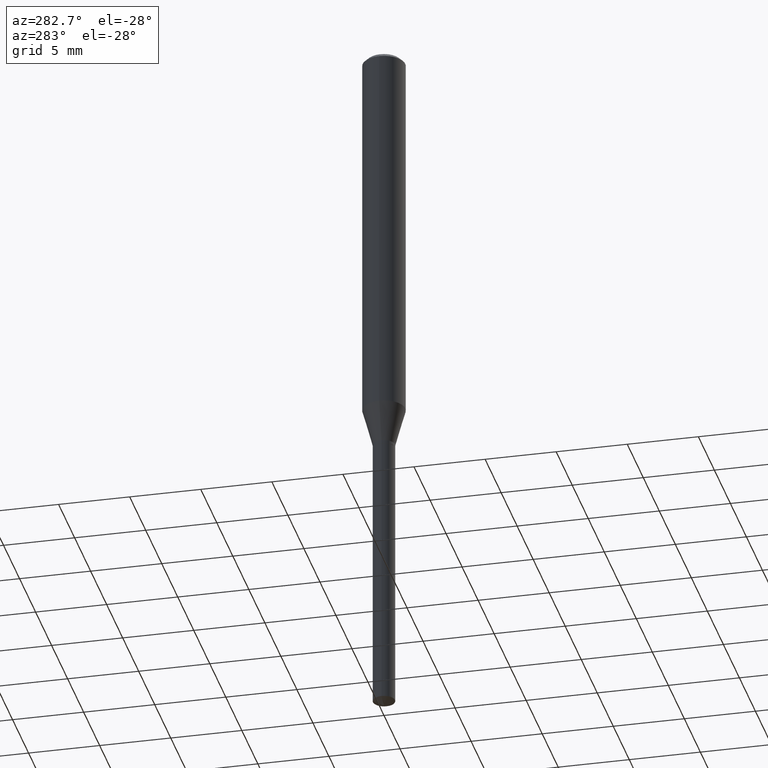
[diagram: clean part render]
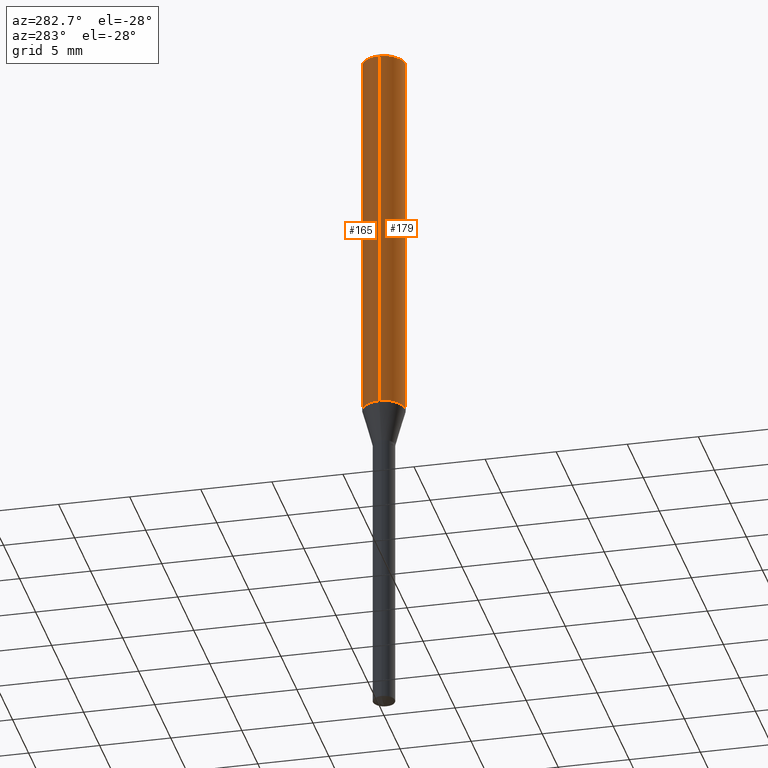
[diagram: same view with one multi-face feature highlighted, each face labeled with its STEP entity id]
A machine part, auxiliary view. The highlighted faces form ONE feature: a constant-radius fillet chain: 2 tangent blend faces with common blend radius 1.4999 mm. The faces share edges in the B-rep.
Their STEP definitions:
[1] entity #179 (Cylinder):
#7 = AXIS2_PLACEMENT_3D ( 'NONE', #126, #177, #366 ) ;
#22 = ORIENTED_EDGE ( 'NONE', *, *, #247, .F. ) ;
#30 = LINE ( 'NONE', #303, #430 ) ;
#37 = CARTESIAN_POINT ( 'NONE',  ( -0.05904999999999999832, -1.461739316084686790E-15, -0.01181000000000007044 ) ) ;
#38 = CARTESIAN_POINT ( 'NONE',  ( -0.05905000000000013710, -3.301819723023976134E-15, -1.065849949443908429 ) ) ;
#47 = EDGE_CURVE ( 'NONE', #231, #252, #164, .T. ) ;
#61 = CARTESIAN_POINT ( 'NONE',  ( 2.888098660104663766E-31, -4.123439461173779647E-17, -0.01181000000000007044 ) ) ;
#69 = CARTESIAN_POINT ( 'NONE',  ( 0.000000000000000000, 0.000000000000000000, 0.000000000000000000 ) ) ;
#74 = DIRECTION ( 'NONE',  ( 1.000000000000000000, -6.982962677686266711E-15, 0.000000000000000000 ) ) ;
#104 = CARTESIAN_POINT ( 'NONE',  ( 0.05905000000000013710, -4.133739154607691731E-15, -1.065849949443908429 ) ) ;
#126 = CARTESIAN_POINT ( 'NONE',  ( 2.606502803439082942E-29, -3.721395208490316810E-15, -1.065849949443908429 ) ) ;
#127 = ORIENTED_EDGE ( 'NONE', *, *, #376, .F. ) ;
#164 = CIRCLE ( 'NONE', #7, 0.05905000000000013710 ) ;
#170 = CIRCLE ( 'NONE', #268, 0.05904999999999999832 ) ;
#177 = DIRECTION ( 'NONE',  ( -2.445468806185136597E-29, 3.491481338843145583E-15, 1.000000000000000000 ) ) ;
#178 = ORIENTED_EDGE ( 'NONE', *, *, #255, .T. ) ;
#179 = ADVANCED_FACE ( 'NONE', ( #320 ), #282, .T. ) ;
#231 = VERTEX_POINT ( 'NONE', #38 ) ;
#247 = EDGE_CURVE ( 'NONE', #231, #298, #30, .T. ) ;
#252 = VERTEX_POINT ( 'NONE', #104 ) ;
#255 = EDGE_CURVE ( 'NONE', #252, #339, #273, .T. ) ;
#260 = CARTESIAN_POINT ( 'NONE',  ( 0.05904999999999999832, -4.535783407291118600E-16, -0.01181000000000007044 ) ) ;
#268 = AXIS2_PLACEMENT_3D ( 'NONE', #61, #480, #74 ) ;
#273 = LINE ( 'NONE', #446, #357 ) ;
#282 = CYLINDRICAL_SURFACE ( 'NONE', #369, 0.05905000000000006771 ) ;
#286 = ORIENTED_EDGE ( 'NONE', *, *, #47, .T. ) ;
#298 = VERTEX_POINT ( 'NONE', #37 ) ;
#300 = DIRECTION ( 'NONE',  ( 1.000000000000000000, -6.982962677686266711E-15, 4.876176775795936353E-29 ) ) ;
#303 = CARTESIAN_POINT ( 'NONE',  ( -0.05905000000000006771, 4.195754854663396409E-16, -2.904631170795525045E-30 ) ) ;
#320 = FACE_OUTER_BOUND ( 'NONE', #375, .T. ) ;
#339 = VERTEX_POINT ( 'NONE', #260 ) ;
#357 = VECTOR ( 'NONE', #383, 39.37007874015748143 ) ;
#366 = DIRECTION ( 'NONE',  ( 1.000000000000000000, -6.982962677686264344E-15, 0.000000000000000000 ) ) ;
#369 = AXIS2_PLACEMENT_3D ( 'NONE', #69, #419, #300 ) ;
#375 = EDGE_LOOP ( 'NONE', ( #22, #286, #178, #127 ) ) ;
#376 = EDGE_CURVE ( 'NONE', #298, #339, #170, .T. ) ;
#383 = DIRECTION ( 'NONE',  ( -2.445468806185136877E-29, 3.491481338843145188E-15, 1.000000000000000000 ) ) ;
#419 = DIRECTION ( 'NONE',  ( -2.445468806185136597E-29, 3.491481338843145583E-15, 1.000000000000000000 ) ) ;
#430 = VECTOR ( 'NONE', #449, 39.37007874015748143 ) ;
#446 = CARTESIAN_POINT ( 'NONE',  ( 0.05905000000000006771, -4.123439461173745257E-16, 2.879382386107503723E-30 ) ) ;
#449 = DIRECTION ( 'NONE',  ( -2.445468806185136877E-29, 3.491481338843145188E-15, 1.000000000000000000 ) ) ;
#480 = DIRECTION ( 'NONE',  ( -2.445468806185136597E-29, 3.491481338843145583E-15, 1.000000000000000000 ) ) ;
[2] entity #165 (Cylinder):
#12 = DIRECTION ( 'NONE',  ( -2.445468806185136597E-29, 3.491481338843145583E-15, 1.000000000000000000 ) ) ;
#30 = LINE ( 'NONE', #303, #430 ) ;
#37 = CARTESIAN_POINT ( 'NONE',  ( -0.05904999999999999832, -1.461739316084686790E-15, -0.01181000000000007044 ) ) ;
#38 = CARTESIAN_POINT ( 'NONE',  ( -0.05905000000000013710, -3.301819723023976134E-15, -1.065849949443908429 ) ) ;
#39 = CIRCLE ( 'NONE', #163, 0.05905000000000013710 ) ;
#57 = DIRECTION ( 'NONE',  ( 1.000000000000000000, -6.982962677686266711E-15, 4.876176775795936353E-29 ) ) ;
#104 = CARTESIAN_POINT ( 'NONE',  ( 0.05905000000000013710, -4.133739154607691731E-15, -1.065849949443908429 ) ) ;
#163 = AXIS2_PLACEMENT_3D ( 'NONE', #296, #12, #166 ) ;
#165 = ADVANCED_FACE ( 'NONE', ( #405 ), #402, .T. ) ;
#166 = DIRECTION ( 'NONE',  ( 1.000000000000000000, -6.982962677686264344E-15, 0.000000000000000000 ) ) ;
#171 = EDGE_CURVE ( 'NONE', #252, #231, #39, .T. ) ;
#231 = VERTEX_POINT ( 'NONE', #38 ) ;
#247 = EDGE_CURVE ( 'NONE', #231, #298, #30, .T. ) ;
#252 = VERTEX_POINT ( 'NONE', #104 ) ;
#254 = AXIS2_PLACEMENT_3D ( 'NONE', #291, #436, #57 ) ;
#255 = EDGE_CURVE ( 'NONE', #252, #339, #273, .T. ) ;
#258 = ORIENTED_EDGE ( 'NONE', *, *, #317, .F. ) ;
#260 = CARTESIAN_POINT ( 'NONE',  ( 0.05904999999999999832, -4.535783407291118600E-16, -0.01181000000000007044 ) ) ;
#263 = DIRECTION ( 'NONE',  ( -2.445468806185136597E-29, 3.491481338843145583E-15, 1.000000000000000000 ) ) ;
#273 = LINE ( 'NONE', #446, #357 ) ;
#291 = CARTESIAN_POINT ( 'NONE',  ( 0.000000000000000000, 0.000000000000000000, 0.000000000000000000 ) ) ;
#296 = CARTESIAN_POINT ( 'NONE',  ( 2.606502803439082942E-29, -3.721395208490316810E-15, -1.065849949443908429 ) ) ;
#298 = VERTEX_POINT ( 'NONE', #37 ) ;
#303 = CARTESIAN_POINT ( 'NONE',  ( -0.05905000000000006771, 4.195754854663396409E-16, -2.904631170795525045E-30 ) ) ;
#305 = EDGE_LOOP ( 'NONE', ( #368, #417, #258, #463 ) ) ;
#314 = CIRCLE ( 'NONE', #422, 0.05904999999999999832 ) ;
#317 = EDGE_CURVE ( 'NONE', #339, #298, #314, .T. ) ;
#339 = VERTEX_POINT ( 'NONE', #260 ) ;
#357 = VECTOR ( 'NONE', #383, 39.37007874015748143 ) ;
#368 = ORIENTED_EDGE ( 'NONE', *, *, #171, .T. ) ;
#383 = DIRECTION ( 'NONE',  ( -2.445468806185136877E-29, 3.491481338843145188E-15, 1.000000000000000000 ) ) ;
#402 = CYLINDRICAL_SURFACE ( 'NONE', #254, 0.05905000000000006771 ) ;
#405 = FACE_OUTER_BOUND ( 'NONE', #305, .T. ) ;
#412 = DIRECTION ( 'NONE',  ( 1.000000000000000000, -6.982962677686266711E-15, 0.000000000000000000 ) ) ;
#417 = ORIENTED_EDGE ( 'NONE', *, *, #247, .T. ) ;
#418 = CARTESIAN_POINT ( 'NONE',  ( 2.888098660104663766E-31, -4.123439461173779647E-17, -0.01181000000000007044 ) ) ;
#422 = AXIS2_PLACEMENT_3D ( 'NONE', #418, #263, #412 ) ;
#430 = VECTOR ( 'NONE', #449, 39.37007874015748143 ) ;
#436 = DIRECTION ( 'NONE',  ( -2.445468806185136597E-29, 3.491481338843145583E-15, 1.000000000000000000 ) ) ;
#446 = CARTESIAN_POINT ( 'NONE',  ( 0.05905000000000006771, -4.123439461173745257E-16, 2.879382386107503723E-30 ) ) ;
#449 = DIRECTION ( 'NONE',  ( -2.445468806185136877E-29, 3.491481338843145188E-15, 1.000000000000000000 ) ) ;
#463 = ORIENTED_EDGE ( 'NONE', *, *, #255, .F. ) ;